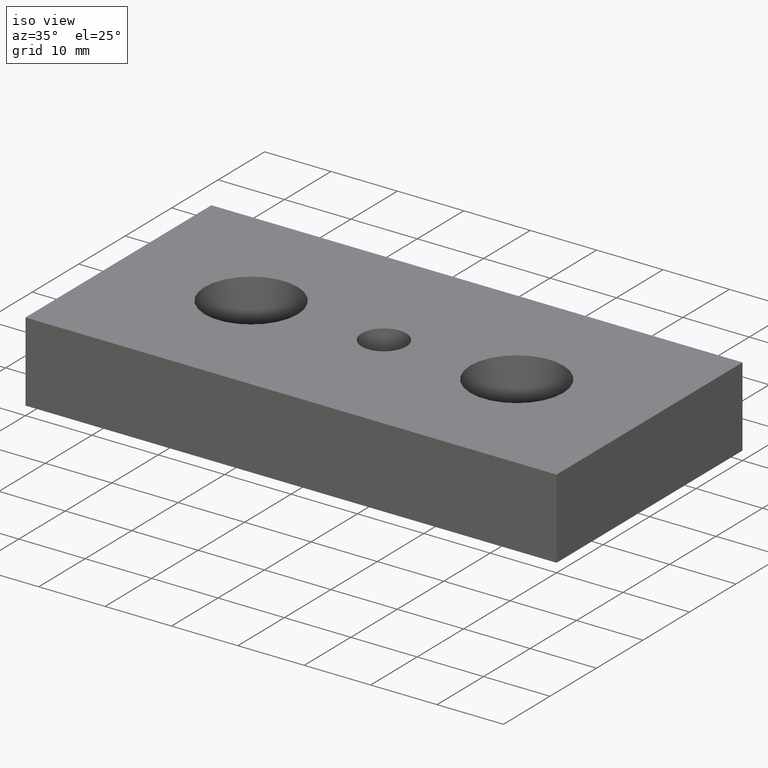
[diagram: clean part render]
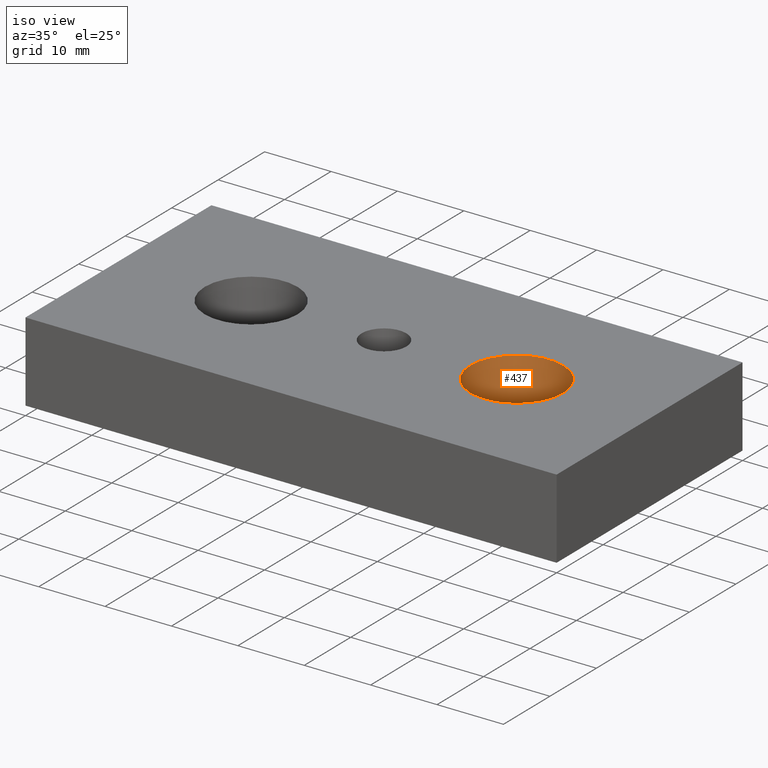
[diagram: same view with one face highlighted and labeled with its STEP entity id]
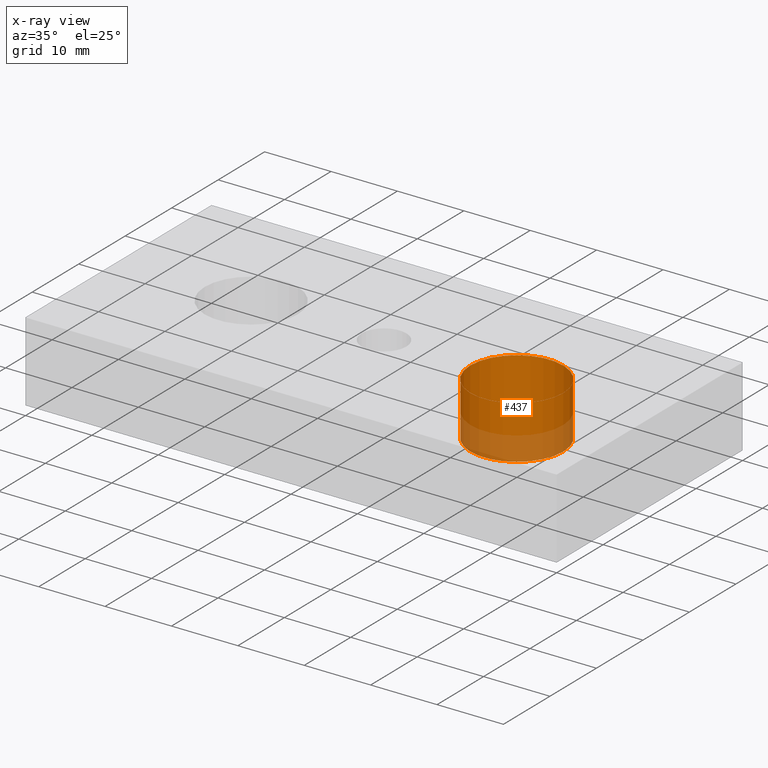
[diagram: x-ray of the same camera — body ghosted, the highlighted face saturated]
A machine part, iso view. The second image highlights one B-rep face of the part: STEP entity #437.
The next image is the same camera in x-ray: the body ghosted, the highlighted face saturated — about 27% of this face is hidden behind the body in this view.
In plain terms, the highlighted cylindrical surface (bore or boss wall) has radius 7 mm, axis along (0, 0, 1).
Its self-contained STEP definition (entity closure, byte-faithful):
#157=CARTESIAN_POINT('',(12.999997113999939,0.000004439999998,12.0));
#158=VERTEX_POINT('',#157);
#159=CARTESIAN_POINT('',(26.999994005999952,0.000004439999998,11.999999999999998));
#160=VERTEX_POINT('',#159);
#161=CARTESIAN_POINT('',(19.999995559999945,0.000004439999998,12.0));
#162=DIRECTION('',(0.0,6.123234E-017,1.0));
#163=DIRECTION('',(1.0,0.0,0.0));
#164=AXIS2_PLACEMENT_3D('',#161,#162,#163);
#165=CIRCLE('',#164,6.999998446000006);
#166=EDGE_CURVE('',#158,#160,#165,.T.);
#168=CARTESIAN_POINT('',(19.999995559999945,0.000004439999998,12.0));
#169=DIRECTION('',(0.0,6.123234E-017,1.0));
#170=DIRECTION('',(1.0,0.0,0.0));
#171=AXIS2_PLACEMENT_3D('',#168,#169,#170);
#172=CIRCLE('',#171,6.999998446000006);
#173=EDGE_CURVE('',#160,#158,#172,.T.);
#394=CARTESIAN_POINT('',(26.999994005999952,0.000004439999998,4.0));
#395=VERTEX_POINT('',#394);
#396=CARTESIAN_POINT('',(12.999997113999939,0.000004439999998,4.0));
#397=VERTEX_POINT('',#396);
#398=CARTESIAN_POINT('',(19.999995559999945,0.000004439999998,4.0));
#399=DIRECTION('',(0.0,6.123234E-017,1.0));
#400=DIRECTION('',(1.0,0.0,0.0));
#401=AXIS2_PLACEMENT_3D('',#398,#399,#400);
#402=CIRCLE('',#401,6.999998446000006);
#403=EDGE_CURVE('',#395,#397,#402,.T.);
#405=CARTESIAN_POINT('',(19.999995559999945,0.000004439999998,4.0));
#406=DIRECTION('',(0.0,6.123234E-017,1.0));
#407=DIRECTION('',(1.0,0.0,0.0));
#408=AXIS2_PLACEMENT_3D('',#405,#406,#407);
#409=CIRCLE('',#408,6.999998446000006);
#410=EDGE_CURVE('',#397,#395,#409,.T.);
#419=CARTESIAN_POINT('',(19.999995559999945,0.000004439999998,4.0));
#420=DIRECTION('',(0.0,6.123234E-017,1.0));
#421=DIRECTION('',(1.0,0.0,0.0));
#422=AXIS2_PLACEMENT_3D('',#419,#420,#421);
#423=CYLINDRICAL_SURFACE('',#422,6.999998446000006);
#424=CARTESIAN_POINT('',(26.999994005999952,0.000004439999998,4.0));
#425=DIRECTION('',(0.0,0.0,1.0));
#426=VECTOR('',#425,7.999999999999998);
#427=LINE('',#424,#426);
#428=EDGE_CURVE('',#395,#160,#427,.T.);
#429=ORIENTED_EDGE('',*,*,#428,.T.);
#430=ORIENTED_EDGE('',*,*,#173,.T.);
#431=ORIENTED_EDGE('',*,*,#166,.T.);
#432=ORIENTED_EDGE('',*,*,#428,.F.);
#433=ORIENTED_EDGE('',*,*,#410,.F.);
#434=ORIENTED_EDGE('',*,*,#403,.F.);
#435=EDGE_LOOP('',(#429,#430,#431,#432,#433,#434));
#436=FACE_OUTER_BOUND('',#435,.T.);
#437=ADVANCED_FACE('',(#436),#423,.F.);